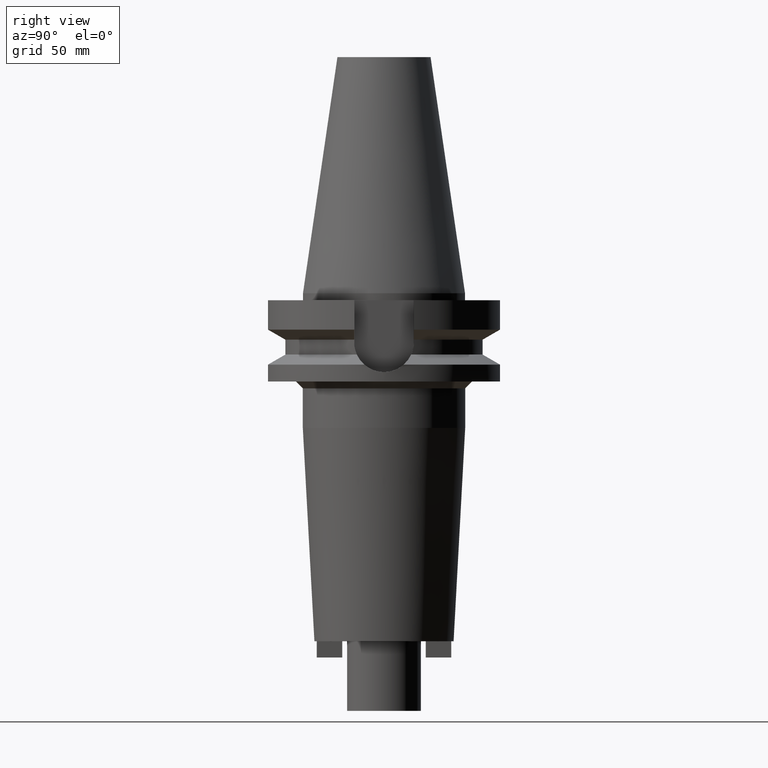
[diagram: clean part render]
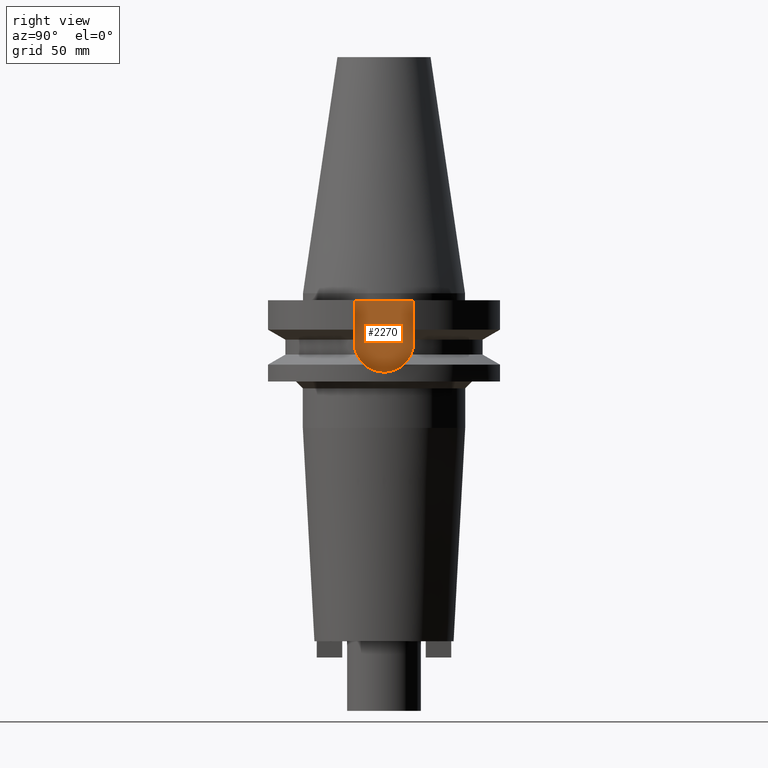
[diagram: same view with one face highlighted and labeled with its STEP entity id]
A machine part, right view. The second image highlights one B-rep face of the part: STEP entity #2270.
In plain terms, the highlighted planar face has unit normal (1, 0, 0).
Its self-contained STEP definition (entity closure, byte-faithful):
#200=DIRECTION('',(0.E0,-1.E0,0.E0));
#201=VECTOR('',#200,2.57E1);
#202=CARTESIAN_POINT('',(3.54E1,1.285E1,-3.E0));
#203=LINE('',#202,#201);
#1056=DIRECTION('',(0.E0,0.E0,-1.E0));
#1057=VECTOR('',#1056,1.815E1);
#1058=CARTESIAN_POINT('',(3.54E1,1.285E1,-3.E0));
#1059=LINE('',#1058,#1057);
#1063=CARTESIAN_POINT('',(3.54E1,0.E0,-2.115E1));
#1064=DIRECTION('',(-1.E0,0.E0,0.E0));
#1065=DIRECTION('',(0.E0,1.E0,0.E0));
#1066=AXIS2_PLACEMENT_3D('',#1063,#1064,#1065);
#1071=CARTESIAN_POINT('',(3.54E1,0.E0,-2.115E1));
#1072=DIRECTION('',(-1.E0,0.E0,0.E0));
#1073=DIRECTION('',(0.E0,0.E0,-1.E0));
#1074=AXIS2_PLACEMENT_3D('',#1071,#1072,#1073);
#1079=DIRECTION('',(0.E0,0.E0,1.E0));
#1080=VECTOR('',#1079,1.815E1);
#1081=CARTESIAN_POINT('',(3.54E1,-1.285E1,-2.115E1));
#1082=LINE('',#1081,#1080);
#1236=CARTESIAN_POINT('',(3.54E1,1.285E1,-3.E0));
#1237=VERTEX_POINT('',#1236);
#1238=CARTESIAN_POINT('',(3.54E1,-1.285E1,-3.E0));
#1239=VERTEX_POINT('',#1238);
#1290=CARTESIAN_POINT('',(3.54E1,-1.285E1,-2.115E1));
#1291=VERTEX_POINT('',#1290);
#1292=CARTESIAN_POINT('',(3.54E1,0.E0,-3.4E1));
#1293=VERTEX_POINT('',#1292);
#1294=CARTESIAN_POINT('',(3.54E1,1.285E1,-2.115E1));
#1295=VERTEX_POINT('',#1294);
#2257=CARTESIAN_POINT('',(3.54E1,0.E0,0.E0));
#2258=DIRECTION('',(1.E0,0.E0,0.E0));
#2259=DIRECTION('',(0.E0,0.E0,-1.E0));
#2260=AXIS2_PLACEMENT_3D('',#2257,#2258,#2259);
#2261=PLANE('',#2260);
#2262=ORIENTED_EDGE('',*,*,#1562,.F.);
#2263=ORIENTED_EDGE('',*,*,#2247,.T.);
#2264=ORIENTED_EDGE('',*,*,#1689,.T.);
#2265=ORIENTED_EDGE('',*,*,#1687,.T.);
#2267=ORIENTED_EDGE('',*,*,#2266,.T.);
#2268=EDGE_LOOP('',(#2262,#2263,#2264,#2265,#2267));
#2269=FACE_OUTER_BOUND('',#2268,.F.);
#1067=CIRCLE('',#1066,1.285E1);
#1075=CIRCLE('',#1074,1.285E1);
#1562=EDGE_CURVE('',#1237,#1239,#203,.T.);
#1687=EDGE_CURVE('',#1293,#1291,#1075,.T.);
#1689=EDGE_CURVE('',#1295,#1293,#1067,.T.);
#2247=EDGE_CURVE('',#1237,#1295,#1059,.T.);
#2266=EDGE_CURVE('',#1291,#1239,#1082,.T.);
#2270=ADVANCED_FACE('',(#2269),#2261,.T.);